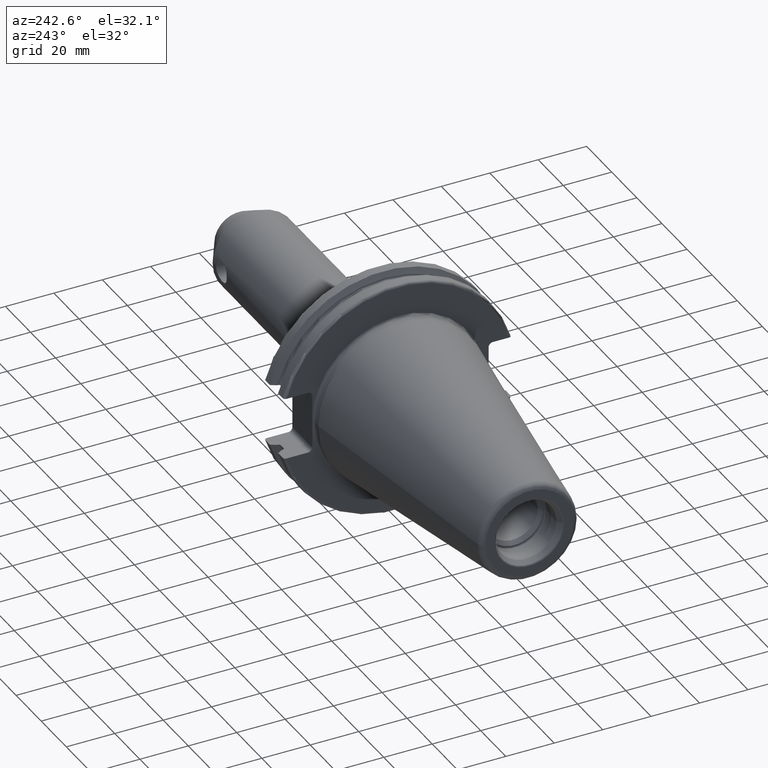
[diagram: clean part render]
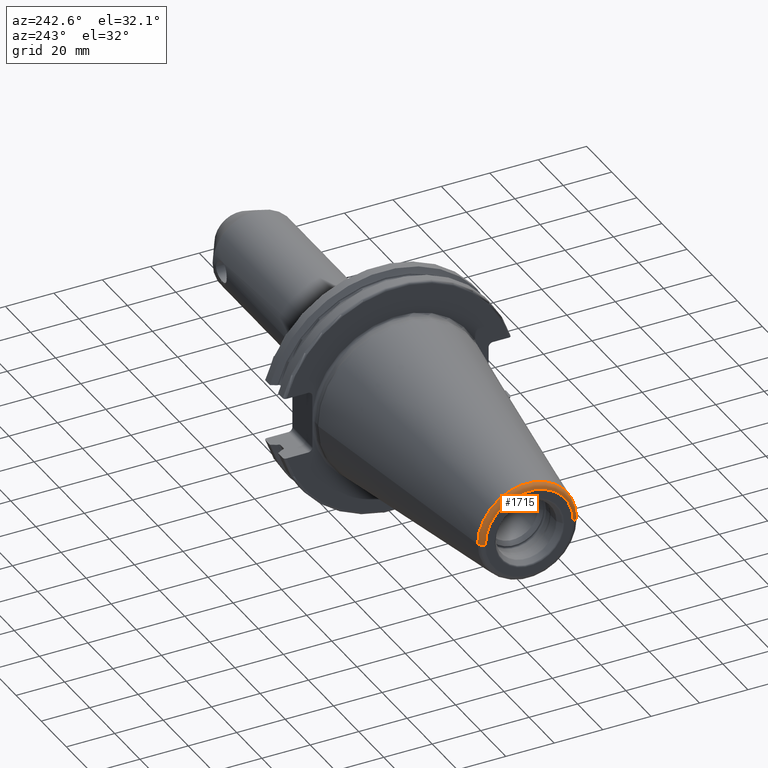
[diagram: same view with one face highlighted and labeled with its STEP entity id]
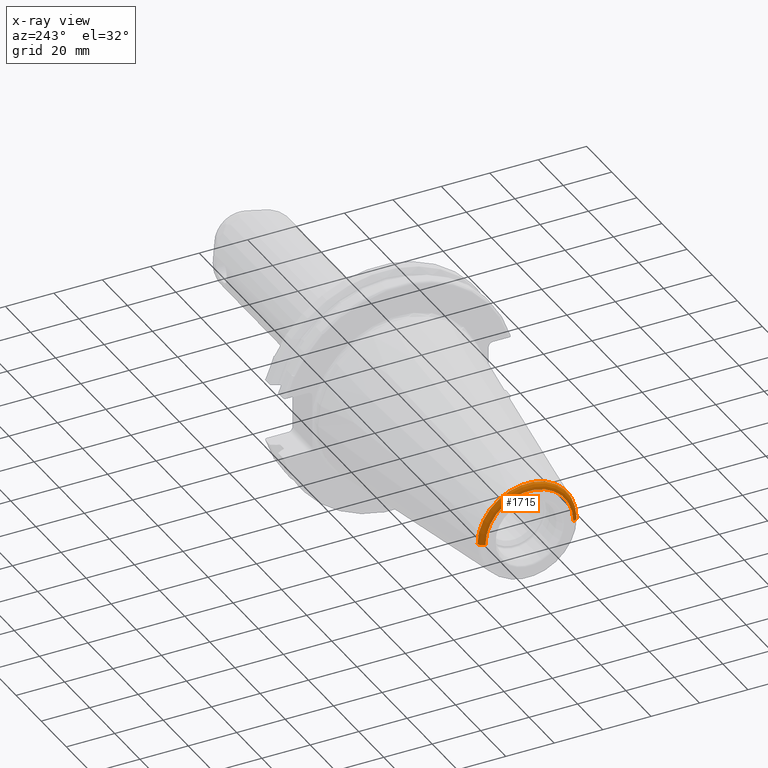
[diagram: x-ray of the same camera — body ghosted, the highlighted face saturated]
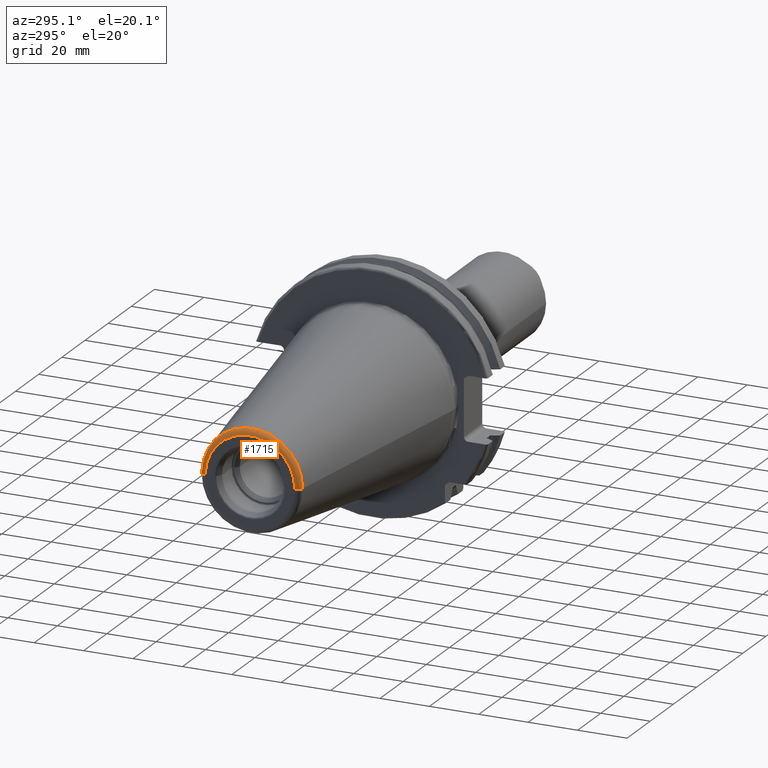
[diagram: same view with one face highlighted and labeled with its STEP entity id]
A machine part, auxiliary view. The second image highlights one B-rep face of the part: STEP entity #1715.
The next image is the same camera in x-ray: the body ghosted, the highlighted face saturated — about 0% of this face is hidden behind the body in this view.
A second angle (auxiliary view) of the same face is appended — the face is thin or edge-on in the first view.
In plain terms, the highlighted toroidal blend (fillet) surface has major radius 18.1614 mm and minor (blend) radius 2.25 mm.
Its self-contained STEP definition (entity closure, byte-faithful):
#7=CARTESIAN_POINT('',(-1.016E2,0.E0,0.E0));
#8=DIRECTION('',(1.E0,0.E0,0.E0));
#9=DIRECTION('',(0.E0,1.E0,0.E0));
#10=AXIS2_PLACEMENT_3D('',#7,#8,#9);
#22=CARTESIAN_POINT('',(-9.935E1,1.816144700117E1,0.E0));
#23=DIRECTION('',(0.E0,0.E0,1.E0));
#24=DIRECTION('',(-1.443186691705E-1,9.895312636440E-1,0.E0));
#25=AXIS2_PLACEMENT_3D('',#22,#23,#24);
#27=CARTESIAN_POINT('',(-9.935E1,-1.816144700117E1,0.E0));
#28=DIRECTION('',(0.E0,0.E0,-1.E0));
#29=DIRECTION('',(-1.443186691705E-1,-9.895312636440E-1,0.E0));
#30=AXIS2_PLACEMENT_3D('',#27,#28,#29);
#37=CARTESIAN_POINT('',(-9.967471700563E1,0.E0,0.E0));
#38=DIRECTION('',(1.E0,0.E0,0.E0));
#39=DIRECTION('',(0.E0,1.E0,0.E0));
#40=AXIS2_PLACEMENT_3D('',#37,#38,#39);
#1398=CARTESIAN_POINT('',(-9.967471700563E1,2.038789234437E1,0.E0));
#1399=CARTESIAN_POINT('',(-1.016E2,1.816144700117E1,0.E0));
#1400=VERTEX_POINT('',#1398);
#1401=VERTEX_POINT('',#1399);
#1402=CARTESIAN_POINT('',(-9.967471700563E1,-2.038789234437E1,0.E0));
#1403=CARTESIAN_POINT('',(-1.016E2,-1.816144700117E1,0.E0));
#1404=VERTEX_POINT('',#1402);
#1405=VERTEX_POINT('',#1403);
#1703=CARTESIAN_POINT('',(-9.935E1,0.E0,0.E0));
#1704=DIRECTION('',(1.E0,0.E0,0.E0));
#1705=DIRECTION('',(0.E0,-1.E0,0.E0));
#1706=AXIS2_PLACEMENT_3D('',#1703,#1704,#1705);
#1707=TOROIDAL_SURFACE('',#1706,1.816144700117E1,2.25E0);
#1708=ORIENTED_EDGE('',*,*,#1693,.F.);
#1710=ORIENTED_EDGE('',*,*,#1709,.T.);
#1711=ORIENTED_EDGE('',*,*,#1696,.T.);
#1712=ORIENTED_EDGE('',*,*,#1677,.F.);
#1713=EDGE_LOOP('',(#1708,#1710,#1711,#1712));
#1714=FACE_OUTER_BOUND('',#1713,.F.);
#1715=ADVANCED_FACE('',(#1714),#1707,.T.);
#11=CIRCLE('',#10,1.816144700117E1);
#26=CIRCLE('',#25,2.25E0);
#31=CIRCLE('',#30,2.25E0);
#41=CIRCLE('',#40,2.038789234437E1);
#1677=EDGE_CURVE('',#1401,#1405,#11,.T.);
#1693=EDGE_CURVE('',#1400,#1401,#26,.T.);
#1696=EDGE_CURVE('',#1404,#1405,#31,.T.);
#1709=EDGE_CURVE('',#1400,#1404,#41,.T.);